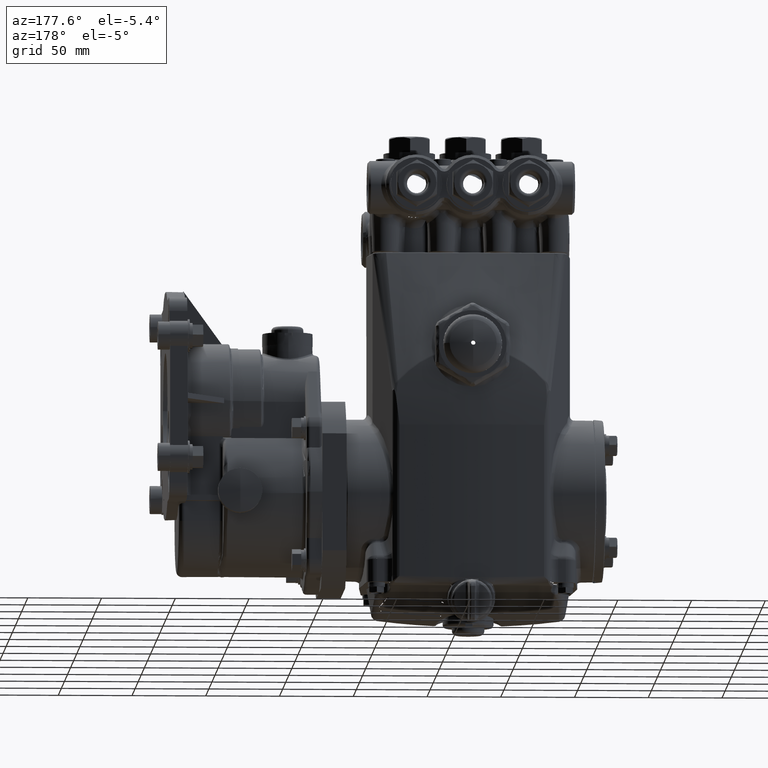
[diagram: clean part render]
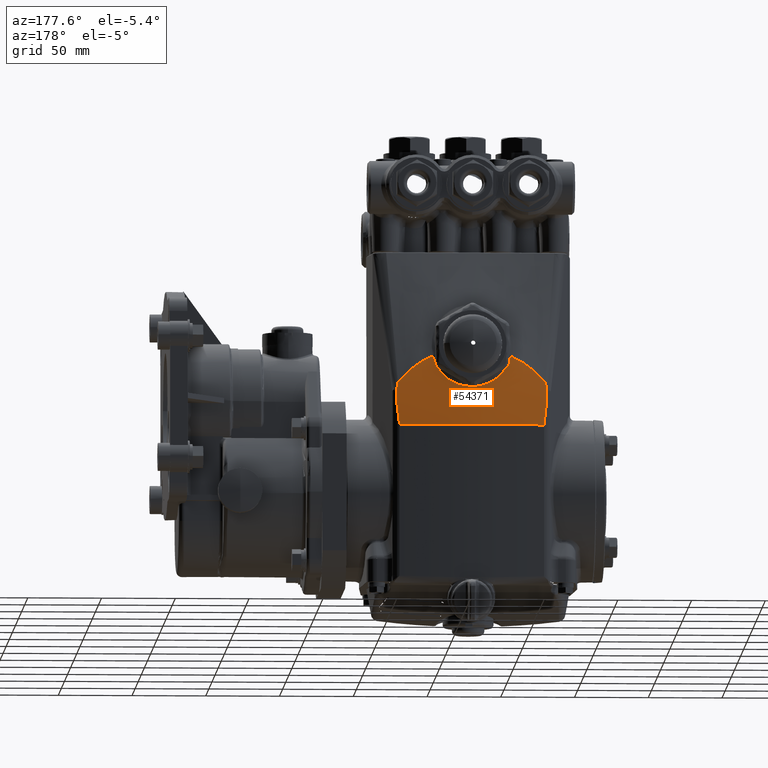
[diagram: same view with one face highlighted and labeled with its STEP entity id]
A machine part, auxiliary view. The second image highlights one B-rep face of the part: STEP entity #54371.
In plain terms, the highlighted spherical surface has radius 400 mm.
Its self-contained STEP definition (entity closure, byte-faithful):
#1070 = CARTESIAN_POINT ( 'NONE',  ( 7.411710589417288553, 2.760108725051190426, -0.4744634273393871782 ) ) ;
#1759 = CARTESIAN_POINT ( 'NONE',  ( 7.359266636544274043, 2.744135218266491538, -0.1176191281825129387 ) ) ;
#1860 = CARTESIAN_POINT ( 'NONE',  ( 3.585143597574464103, 2.748840525729377315, 0.02764377415667945703 ) ) ;
#5626 = CARTESIAN_POINT ( 'NONE',  ( 4.721534570659011720, 2.843959012283986620, -0.02465880241784706300 ) ) ;
#5769 = CARTESIAN_POINT ( 'NONE',  ( 5.976630914729137878, 2.854871326418241040, -0.1068568469742178922 ) ) ;
#7725 = VERTEX_POINT ( 'NONE', #59507 ) ;
#8585 = CARTESIAN_POINT ( 'NONE',  ( 7.293187918398695402, 2.746628519215017938, -0.04066685915235219995 ) ) ;
#9113 = EDGE_CURVE ( 'NONE', #68163, #28162, #116199, .T. ) ;
#9606 = ORIENTED_EDGE ( 'NONE', *, *, #21107, .T. ) ;
#9628 = CARTESIAN_POINT ( 'NONE',  ( 5.752283558138952202, 2.869188007011713282, -0.2145593849138518472 ) ) ;
#10571 = B_SPLINE_CURVE_WITH_KNOTS ( 'NONE', 3,
 ( #140017, #129389, #118066, #63530, #86231, #74885, #96152, #139338, #106747, #20960, #11020, #95458, #20267, #54279, #96822, #52878, #64212, #9628, #43629, #84134, #65631, #31593 ),
 .UNSPECIFIED., .F., .F.,
 ( 4, 2, 2, 2, 2, 2, 2, 2, 2, 2, 4 ),
 ( 0.000000000000000000, 0.003790329581844025485, 0.007580659163688050969, 0.009475823954610104044, 0.01137098874553215712, 0.01516131832737626327, 0.01895164790922037115, 0.02084681270014238086, 0.02274197749106439403, 0.02653230707290842039, 0.03032263665475244674 ),
 .UNSPECIFIED. ) ;
#10792 = CARTESIAN_POINT ( 'NONE',  ( 6.451186556671676620, 2.765995429165698738, 0.5609271297815074941 ) ) ;
#11020 = CARTESIAN_POINT ( 'NONE',  ( 5.355340753378112773, 2.876588609866419510, -0.2700890872114328212 ) ) ;
#11033 = CARTESIAN_POINT ( 'NONE',  ( 7.408840721262099471, 2.754016104290524236, -0.3589173966589278009 ) ) ;
#11382 = CARTESIAN_POINT ( 'NONE',  ( 7.227541293521897003, 2.748840525729375095, 0.02764377415669114907 ) ) ;
#12854 = VERTEX_POINT ( 'NONE', #111402 ) ;
#13196 = CARTESIAN_POINT ( 'NONE',  ( 4.190459829063852837, 2.763313851934610987, 0.4774421532694348991 ) ) ;
#15293 = CARTESIAN_POINT ( 'NONE',  ( 3.795237427238295602, 2.754935085353053648, 0.2167603371355423802 ) ) ;
#15365 = CARTESIAN_POINT ( 'NONE',  ( 3.404766025644409222, 2.769003295580157786, -0.6594743326888403701 ) ) ;
#15526 = ORIENTED_EDGE ( 'NONE', *, *, #130062, .F. ) ;
#16180 = EDGE_CURVE ( 'NONE', #42837, #85389, #88405, .T. ) ;
#19972 = CARTESIAN_POINT ( 'NONE',  ( 3.409013248301451693, 2.750429659533683235, -0.2897242891631867656 ) ) ;
#20267 = CARTESIAN_POINT ( 'NONE',  ( 5.506640452032141475, 2.876128733683195104, -0.2666418199962487523 ) ) ;
#20960 = CARTESIAN_POINT ( 'NONE',  ( 5.305292536416565063, 2.876118011636385585, -0.2665614231835552461 ) ) ;
#21107 = EDGE_CURVE ( 'NONE', #27507, #68163, #69700, .T. ) ;
#21434 = CARTESIAN_POINT ( 'NONE',  ( 6.117878968058032108, 2.840912178149003875, -0.001718556176561512796 ) ) ;
#22133 = CARTESIAN_POINT ( 'NONE',  ( 6.035159107400927425, 2.849722317005130456, -0.06806325455442235883 ) ) ;
#22369 = CARTESIAN_POINT ( 'NONE',  ( 7.401187944168125199, 2.749269697790677647, -0.2667691594126622157 ) ) ;
#22506 = CARTESIAN_POINT ( 'NONE',  ( 7.355400256998185782, 2.744280672945216715, -0.1131107497964023850 ) ) ;
#23739 = CARTESIAN_POINT ( 'NONE',  ( 7.407507478083310559, 2.752803683737065743, -0.3358310037822204164 ) ) ;
#23825 = CARTESIAN_POINT ( 'NONE',  ( 5.976630914729137878, 2.854871326418241040, -0.1068568469742178922 ) ) ;
#23897 = CARTESIAN_POINT ( 'NONE',  ( 3.478449942988243393, 2.790672730887743036, -1.281856896720500183 ) ) ;
#24214 = CARTESIAN_POINT ( 'NONE',  ( 6.354734944268568775, 2.800802878353770620, 0.2998519358522238609 ) ) ;
#25307 = FACE_OUTER_BOUND ( 'NONE', #139385, .T. ) ;
#25746 = CARTESIAN_POINT ( 'NONE',  ( 7.407918865451945223, 2.769003295580157786, -0.6594743326888403701 ) ) ;
#27507 = VERTEX_POINT ( 'NONE', #138537 ) ;
#28162 = VERTEX_POINT ( 'NONE', #40219 ) ;
#28674 = CARTESIAN_POINT ( 'NONE',  ( 4.836053976367216123, 2.854871326418241040, -0.1068568469742178922 ) ) ;
#28997 = CARTESIAN_POINT ( 'NONE',  ( 4.377284385243741305, 2.775167860691243327, 0.4922045207538940925 ) ) ;
#29235 = CARTESIAN_POINT ( 'NONE',  ( 3.403844169834249644, 2.754016104290522016, -0.3589173966589278009 ) ) ;
#29401 = VERTEX_POINT ( 'NONE', #48300 ) ;
#31593 = CARTESIAN_POINT ( 'NONE',  ( 5.976630914729137878, 2.854871326418241040, -0.1068568469742178922 ) ) ;
#32090 = CARTESIAN_POINT ( 'NONE',  ( 6.239926505359144393, 2.824317205061654512, 0.1231590657167134090 ) ) ;
#32773 = CARTESIAN_POINT ( 'NONE',  ( 6.413161078979516816, 2.783974961574250173, 0.4261585573468510968 ) ) ;
#33387 = CARTESIAN_POINT ( 'NONE',  ( 3.450244936405966634, 2.744100141327170839, -0.1224879249711158802 ) ) ;
#33441 = ORIENTED_EDGE ( 'NONE', *, *, #9113, .T. ) ;
#35149 = CARTESIAN_POINT ( 'NONE',  ( 4.275141501177729175, 2.764712794711290389, 0.5209833418155830342 ) ) ;
#35232 = CARTESIAN_POINT ( 'NONE',  ( 7.334234948108111496, 2.790672730887743036, -1.281856896720500183 ) ) ;
#36804 = CARTESIAN_POINT ( 'NONE',  ( 4.511772906341056988, 2.812885709937618106, 0.2090859492975347678 ) ) ;
#37755 = B_SPLINE_CURVE_WITH_KNOTS ( 'NONE', 3,
 ( #107087, #8585, #11382, #83779, #108479, #53906, #84467, #64555, #73116, #86579, #85879, #107772 ),
 .UNSPECIFIED., .F., .F.,
 ( 4, 2, 2, 2, 2, 4 ),
 ( 0.000000000000000000, 0.007175936972554435370, 0.01435187394510887074, 0.02152781091766330784, 0.02511577940394055936, 0.02870374789021781087 ),
 .UNSPECIFIED. ) ;
#38949 = CARTESIAN_POINT ( 'NONE',  ( 4.361498334424678269, 2.765995429165698738, 0.5609271297815074941 ) ) ;
#39497 = AXIS2_PLACEMENT_3D ( 'NONE', #89829, #110338, #123802 ) ;
#40219 = CARTESIAN_POINT ( 'NONE',  ( 3.457284634098168663, 2.744280672945216715, -0.1131107497964023850 ) ) ;
#41243 = CARTESIAN_POINT ( 'NONE',  ( 3.404766025644409222, 2.769003295580157786, -0.6594743326888403701 ) ) ;
#41617 = ORIENTED_EDGE ( 'NONE', *, *, #70125, .T. ) ;
#42837 = VERTEX_POINT ( 'NONE', #25746 ) ;
#43629 = CARTESIAN_POINT ( 'NONE',  ( 5.799082259387792426, 2.866919377165096261, -0.1975202459510603248 ) ) ;
#44314 = CARTESIAN_POINT ( 'NONE',  ( 7.377330556044019438, 2.744529481729054421, -0.1538586733035944842 ) ) ;
#45001 = CARTESIAN_POINT ( 'NONE',  ( 7.355400256998185782, 2.744280672945216715, -0.1131107497964023850 ) ) ;
#45102 = CARTESIAN_POINT ( 'NONE',  ( 3.723008224733409310, 2.752992701842571943, 0.1563641485528850517 ) ) ;
#47459 = CARTESIAN_POINT ( 'NONE',  ( 4.399523812116838073, 2.783974961574250173, 0.4261585573468508747 ) ) ;
#48160 = CARTESIAN_POINT ( 'NONE',  ( 4.806375976819608375, 2.852396947859225929, -0.08821231600555870522 ) ) ;
#48300 = CARTESIAN_POINT ( 'NONE',  ( 7.334234948108111496, 2.790672730887743036, -1.281856896720500183 ) ) ;
#49018 = DIRECTION ( 'NONE',  ( 1.000000000000000000, 0.000000000000000000, 0.000000000000000000 ) ) ;
#51228 = CIRCLE ( 'NONE', #137244, 15.74803149606299257 ) ;
#51889 = CARTESIAN_POINT ( 'NONE',  ( 3.401117893143377646, 2.757663648399890644, -0.4281983147490282526 ) ) ;
#52543 = B_SPLINE_CURVE_WITH_KNOTS ( 'NONE', 3,
 ( #77768, #112416, #1860, #45102, #15293, #88413, #67081, #110288, #13196, #35149, #121615, #93986 ),
 .UNSPECIFIED., .F., .F.,
 ( 4, 2, 2, 2, 2, 4 ),
 ( 0.000000000000000000, 0.007175936972554452717, 0.01435187394510890543, 0.02152781091766335642, 0.02511577940394058364, 0.02870374789021781087 ),
 .UNSPECIFIED. ) ;
#52878 = CARTESIAN_POINT ( 'NONE',  ( 5.655502649839983853, 2.872759866097307491, -0.2413713288349582098 ) ) ;
#53906 = CARTESIAN_POINT ( 'NONE',  ( 6.866403238511703755, 2.758552492153421909, 0.3296342935726797041 ) ) ;
#53978 = CARTESIAN_POINT ( 'NONE',  ( 3.403933985455053435, 2.767051608514772720, -0.6132063874883624255 ) ) ;
#54048 = CARTESIAN_POINT ( 'NONE',  ( 6.091150320437342280, 2.843959012283986620, -0.02465880241784720178 ) ) ;
#54148 = CARTESIAN_POINT ( 'NONE',  ( 3.404766025644409222, 2.769003295580157786, -0.6594743326888403701 ) ) ;
#54279 = CARTESIAN_POINT ( 'NONE',  ( 5.581454290894622083, 2.874732703681152746, -0.2561719247875577365 ) ) ;
#54295 = CARTESIAN_POINT ( 'NONE',  ( 7.394402413040499944, 2.747100472016334560, -0.2211717020273406276 ) ) ;
#54371 = ADVANCED_FACE ( 'NONE', ( #25307 ), #56513, .T. ) ;
#55655 = CARTESIAN_POINT ( 'NONE',  ( 7.368107277143172595, 2.744135195714592967, -0.1325788116785494575 ) ) ;
#56352 = CARTESIAN_POINT ( 'NONE',  ( 7.370581815466014319, 2.744208490288597257, -0.1378110241449267692 ) ) ;
#56513 = SPHERICAL_SURFACE ( 'NONE', #39497, 15.74803149606299257 ) ;
#58342 = B_SPLINE_CURVE_WITH_KNOTS ( 'NONE', 3,
 ( #10792, #121293, #32773, #119226, #24214, #139792, #129176, #32090, #75365, #21434, #54048, #22133, #65409, #5769 ),
 .UNSPECIFIED., .F., .F.,
 ( 4, 2, 2, 2, 2, 2, 4 ),
 ( 2.255140518769849531E-17, 0.005337828596165978753, 0.008006742894248975936, 0.01067565719233197138, 0.01601348578849796922, 0.01868240008658093518, 0.02135131438466390461 ),
 .UNSPECIFIED. ) ;
#59107 = ORIENTED_EDGE ( 'NONE', *, *, #78424, .T. ) ;
#59507 = CARTESIAN_POINT ( 'NONE',  ( 4.361498334424678269, 2.765995429165698738, 0.5609271297815074941 ) ) ;
#60190 = CARTESIAN_POINT ( 'NONE',  ( 4.694805923038323670, 2.840912178149003875, -0.001718556176561234590 ) ) ;
#63530 = CARTESIAN_POINT ( 'NONE',  ( 5.013501601691578102, 2.866913831969906123, -0.1974785686847502220 ) ) ;
#64212 = CARTESIAN_POINT ( 'NONE',  ( 5.680006830788683736, 2.871946628179549599, -0.2352685034332131220 ) ) ;
#64555 = CARTESIAN_POINT ( 'NONE',  ( 6.664070306234108898, 2.762571522919594180, 0.4544603547910327501 ) ) ;
#65409 = CARTESIAN_POINT ( 'NONE',  ( 6.006308914276746513, 2.852396947859227705, -0.08821231600555874686 ) ) ;
#65631 = CARTESIAN_POINT ( 'NONE',  ( 5.934006111573649100, 2.858425133973256926, -0.1336349140467886221 ) ) ;
#67081 = CARTESIAN_POINT ( 'NONE',  ( 4.025135362693263552, 2.760236261075037945, 0.3820652136290408341 ) ) ;
#67884 = CARTESIAN_POINT ( 'NONE',  ( 7.384561477712114907, 2.780266509493670934, -0.8668124400433430132 ) ) ;
#68163 = VERTEX_POINT ( 'NONE', #54148 ) ;
#69700 = B_SPLINE_CURVE_WITH_KNOTS ( 'NONE', 3,
 ( #23897, #112489, #78514, #15365 ),
 .UNSPECIFIED., .F., .F.,
 ( 4, 4 ),
 ( -0.0001264911079878683277, 0.01580325867421138869 ),
 .UNSPECIFIED. ) ;
#70125 = EDGE_CURVE ( 'NONE', #29401, #27507, #51228, .T. ) ;
#70148 = CARTESIAN_POINT ( 'NONE',  ( 4.572758385737208719, 2.824317205061654512, 0.1231590657167133951 ) ) ;
#70221 = EDGE_CURVE ( 'NONE', #85389, #12854, #37755, .T. ) ;
#70422 = EDGE_CURVE ( 'NONE', #7725, #134422, #98782, .T. ) ;
#71460 = EDGE_CURVE ( 'NONE', #134422, #76768, #10571, .T. ) ;
#71527 = CARTESIAN_POINT ( 'NONE',  ( 4.618535747108202472, 2.831320628359351055, 0.07047498841637089839 ) ) ;
#73116 = CARTESIAN_POINT ( 'NONE',  ( 6.622225062032496723, 2.763313851934614540, 0.4774421532694265169 ) ) ;
#73812 = B_SPLINE_CURVE_WITH_KNOTS ( 'NONE', 3,
 ( #35232, #77167, #67884, #130956 ),
 .UNSPECIFIED., .F., .F.,
 ( 4, 4 ),
 ( -0.0001264911079878683277, 0.01580325867421138869 ),
 .UNSPECIFIED. ) ;
#74885 = CARTESIAN_POINT ( 'NONE',  ( 5.132374404919143096, 2.871935896744032490, -0.2351879576430124241 ) ) ;
#75256 = EDGE_CURVE ( 'NONE', #12854, #76768, #58342, .T. ) ;
#75365 = CARTESIAN_POINT ( 'NONE',  ( 6.194149143988154194, 2.831320628359350167, 0.07047498841637062084 ) ) ;
#75804 = ORIENTED_EDGE ( 'NONE', *, *, #71460, .T. ) ;
#76693 = CARTESIAN_POINT ( 'NONE',  ( 3.453418254552079070, 2.744135218266491982, -0.1176191281825128832 ) ) ;
#76768 = VERTEX_POINT ( 'NONE', #23825 ) ;
#77167 = CARTESIAN_POINT ( 'NONE',  ( 7.359645860204577339, 2.787538320918073076, -1.074378869970235684 ) ) ;
#77768 = CARTESIAN_POINT ( 'NONE',  ( 3.457284634098168663, 2.744280672945216715, -0.1131107497964023850 ) ) ;
#78061 = CARTESIAN_POINT ( 'NONE',  ( 3.442103075630334352, 2.744208490288595037, -0.1378110241449242990 ) ) ;
#78424 = EDGE_CURVE ( 'NONE', #28162, #7725, #52543, .T. ) ;
#78514 = CARTESIAN_POINT ( 'NONE',  ( 3.428123413384240870, 2.780266509493671379, -0.8668124400433429022 ) ) ;
#80799 = CARTESIAN_POINT ( 'NONE',  ( 4.836053976367216123, 2.854871326418241040, -0.1068568469742178922 ) ) ;
#82223 = CARTESIAN_POINT ( 'NONE',  ( 4.442173538417598877, 2.796661846459180367, 0.3309433287735936147 ) ) ;
#83779 = CARTESIAN_POINT ( 'NONE',  ( 7.089676666362928259, 2.752992701842576384, 0.1563641485528686759 ) ) ;
#84134 = CARTESIAN_POINT ( 'NONE',  ( 5.889943266765567564, 2.861537866491724813, -0.1570573809020416323 ) ) ;
#84467 = CARTESIAN_POINT ( 'NONE',  ( 6.787549528403091337, 2.760236261075037056, 0.3820652136290415002 ) ) ;
#84530 = CARTESIAN_POINT ( 'NONE',  ( 3.405177413013046994, 2.752803683737064411, -0.3358310037822204719 ) ) ;
#85389 = VERTEX_POINT ( 'NONE', #22506 ) ;
#85879 = CARTESIAN_POINT ( 'NONE',  ( 6.494642841968846447, 2.765373780665124848, 0.5415519453914344750 ) ) ;
#86231 = CARTESIAN_POINT ( 'NONE',  ( 5.060235505207494988, 2.869179947254492546, -0.2144988482716677358 ) ) ;
#86579 = CARTESIAN_POINT ( 'NONE',  ( 6.537543389918623049, 2.764712794711293942, 0.5209833418155747076 ) ) ;
#87330 = CARTESIAN_POINT ( 'NONE',  ( 3.431747691321597848, 2.744877421991300803, -0.1650288623368506846 ) ) ;
#88011 = CARTESIAN_POINT ( 'NONE',  ( 3.422502168512468135, 2.746079943245791188, -0.1985154414731198635 ) ) ;
#88405 = B_SPLINE_CURVE_WITH_KNOTS ( 'NONE', 3,
 ( #120829, #119459, #108136, #1070, #109514, #11033, #23739, #132152, #22369, #54295, #98225, #97546, #44314, #56352, #55655, #98899, #1759, #45001 ),
 .UNSPECIFIED., .F., .F.,
 ( 4, 2, 2, 2, 2, 2, 2, 2, 4 ),
 ( 0.000000000000000000, 0.003529259899864232043, 0.007058519799728464085, 0.008823149749660584226, 0.01058777969959270697, 0.01235240964952482798, 0.01323472462449089108, 0.01367588211197390442, 0.01411703959945691950 ),
 .UNSPECIFIED. ) ;
#88413 = CARTESIAN_POINT ( 'NONE',  ( 3.946281652584653798, 2.758552492153424129, 0.3296342935726720436 ) ) ;
#89829 = CARTESIAN_POINT ( 'NONE',  ( 5.406342445548177444, -12.83890584627054210, -1.281856896720500183 ) ) ;
#90734 = CARTESIAN_POINT ( 'NONE',  ( 4.492693494114825548, 2.808905571637419829, 0.2389927266451515320 ) ) ;
#93986 = CARTESIAN_POINT ( 'NONE',  ( 4.361498334424678269, 2.765995429165698738, 0.5609271297815074941 ) ) ;
#95176 = CARTESIAN_POINT ( 'NONE',  ( 3.411496946928224805, 2.749269697790674538, -0.2667691594126617716 ) ) ;
#95458 = CARTESIAN_POINT ( 'NONE',  ( 5.456242134412629952, 2.876595448222892593, -0.2701403565468522561 ) ) ;
#96152 = CARTESIAN_POINT ( 'NONE',  ( 5.156836015172958199, 2.872748930313927751, -0.2412892674670170934 ) ) ;
#96822 = CARTESIAN_POINT ( 'NONE',  ( 5.606239308185153369, 2.874152069571448642, -0.2518167716381778942 ) ) ;
#97252 = CARTESIAN_POINT ( 'NONE',  ( 3.400974301679069445, 2.760108725051190426, -0.4744634273393870116 ) ) ;
#97546 = CARTESIAN_POINT ( 'NONE',  ( 7.380937199774756152, 2.744877421991301247, -0.1650288623368503516 ) ) ;
#98225 = CARTESIAN_POINT ( 'NONE',  ( 7.390182722583886310, 2.746079943245791188, -0.1985154414731195860 ) ) ;
#98782 = B_SPLINE_CURVE_WITH_KNOTS ( 'NONE', 3,
 ( #38949, #28997, #47459, #82223, #133906, #90734, #36804, #70148, #71527, #60190, #5626, #114747, #48160, #80799 ),
 .UNSPECIFIED., .F., .F.,
 ( 4, 2, 2, 2, 2, 2, 4 ),
 ( 3.103167691559091397E-17, 0.005337828596165998703, 0.008006742894248974202, 0.01067565719233194883, 0.01601348578849792759, 0.01868240008658091436, 0.02135131438466390114 ),
 .UNSPECIFIED. ) ;
#98899 = CARTESIAN_POINT ( 'NONE',  ( 7.362439954690383814, 2.744100141327173503, -0.1224879249711165047 ) ) ;
#103604 = CARTESIAN_POINT ( 'NONE',  ( 5.406342445548177444, -12.83890584627054210, -1.281856896720500183 ) ) ;
#105764 = CARTESIAN_POINT ( 'NONE',  ( 3.403008984057497521, 2.764882324099533051, -0.5669506235331037702 ) ) ;
#106472 = CARTESIAN_POINT ( 'NONE',  ( 3.418282478055851392, 2.747100472016333672, -0.2211717020273404610 ) ) ;
#106747 = CARTESIAN_POINT ( 'NONE',  ( 5.230814238905853841, 2.874723253573725046, -0.2561010430835976570 ) ) ;
#107087 = CARTESIAN_POINT ( 'NONE',  ( 7.355400256998185782, 2.744280672945216715, -0.1131107497964023850 ) ) ;
#107750 = ORIENTED_EDGE ( 'NONE', *, *, #75256, .F. ) ;
#107772 = CARTESIAN_POINT ( 'NONE',  ( 6.451186556671676620, 2.765995429165698738, 0.5609271297815074941 ) ) ;
#108136 = CARTESIAN_POINT ( 'NONE',  ( 7.409675907038854703, 2.764882324099533051, -0.5669506235331037702 ) ) ;
#108479 = CARTESIAN_POINT ( 'NONE',  ( 7.017447463858062839, 2.754935085353053204, 0.2167603371355475983 ) ) ;
#109514 = CARTESIAN_POINT ( 'NONE',  ( 7.411566997952974134, 2.757663648399893752, -0.4281983147490280861 ) ) ;
#110288 = CARTESIAN_POINT ( 'NONE',  ( 4.148614584862247767, 2.762571522919594180, 0.4544603547910309183 ) ) ;
#110338 = DIRECTION ( 'NONE',  ( -0.9848077530122080203, 0.1736481776669307475, 0.000000000000000000 ) ) ;
#111402 = CARTESIAN_POINT ( 'NONE',  ( 6.451186556671676620, 2.765995429165698738, 0.5609271297815074941 ) ) ;
#112416 = CARTESIAN_POINT ( 'NONE',  ( 3.519496972697655934, 2.746628519215017050, -0.04066685915234766191 ) ) ;
#112489 = CARTESIAN_POINT ( 'NONE',  ( 3.453039030891799310, 2.787538320918075740, -1.074378869970233019 ) ) ;
#113122 = ORIENTED_EDGE ( 'NONE', *, *, #70422, .T. ) ;
#114747 = CARTESIAN_POINT ( 'NONE',  ( 4.777525783695428352, 2.849722317005129124, -0.06806325455442223393 ) ) ;
#116199 = B_SPLINE_CURVE_WITH_KNOTS ( 'NONE', 3,
 ( #41243, #53978, #105764, #97252, #51889, #29235, #84530, #19972, #95176, #106472, #88011, #87330, #130489, #78061, #121220, #33387, #76693, #119156 ),
 .UNSPECIFIED., .F., .F.,
 ( 4, 2, 2, 2, 2, 2, 2, 2, 4 ),
 ( 0.000000000000000000, 0.003529259899864232043, 0.007058519799728464085, 0.008823149749660584226, 0.01058777969959270003, 0.01235240964952481584, 0.01323472462449086853, 0.01367588211197389401, 0.01411703959945691950 ),
 .UNSPECIFIED. ) ;
#118066 = CARTESIAN_POINT ( 'NONE',  ( 4.922724274628652807, 2.861536399727179436, -0.1570463361517696055 ) ) ;
#119156 = CARTESIAN_POINT ( 'NONE',  ( 3.457284634098168663, 2.744280672945216715, -0.1131107497964023850 ) ) ;
#119226 = CARTESIAN_POINT ( 'NONE',  ( 6.370511352678756012, 2.796661846459181255, 0.3309433287735937812 ) ) ;
#119459 = CARTESIAN_POINT ( 'NONE',  ( 7.408750905641300122, 2.767051608514772720, -0.6132063874883624255 ) ) ;
#120829 = CARTESIAN_POINT ( 'NONE',  ( 7.407918865451945223, 2.769003295580157786, -0.6594743326888403701 ) ) ;
#121022 = ORIENTED_EDGE ( 'NONE', *, *, #16180, .F. ) ;
#121220 = CARTESIAN_POINT ( 'NONE',  ( 3.444577613953180961, 2.744135195714592967, -0.1325788116785490689 ) ) ;
#121293 = CARTESIAN_POINT ( 'NONE',  ( 6.435400505852613584, 2.775167860691244215, 0.4922045207538939815 ) ) ;
#121615 = CARTESIAN_POINT ( 'NONE',  ( 4.318042049127512882, 2.765373780665123959, 0.5415519453914329207 ) ) ;
#123802 = DIRECTION ( 'NONE',  ( 0.1736481776669307475, 0.9848077530122080203, 0.000000000000000000 ) ) ;
#124864 = DIRECTION ( 'NONE',  ( -0.000000000000000000, -0.000000000000000000, 1.000000000000000000 ) ) ;
#125605 = ORIENTED_EDGE ( 'NONE', *, *, #70221, .F. ) ;
#129176 = CARTESIAN_POINT ( 'NONE',  ( 6.300911984755297013, 2.812885709937618106, 0.2090859492975349343 ) ) ;
#129389 = CARTESIAN_POINT ( 'NONE',  ( 4.878680241929382433, 2.858425255900199691, -0.1336358327706565208 ) ) ;
#130062 = EDGE_CURVE ( 'NONE', #29401, #42837, #73812, .T. ) ;
#130489 = CARTESIAN_POINT ( 'NONE',  ( 3.435354335052333230, 2.744529481729051756, -0.1538586733035924581 ) ) ;
#130956 = CARTESIAN_POINT ( 'NONE',  ( 7.407918865451945223, 2.769003295580157786, -0.6594743326888403701 ) ) ;
#132152 = CARTESIAN_POINT ( 'NONE',  ( 7.403671642794904528, 2.750429659533685012, -0.2897242891631865991 ) ) ;
#133906 = CARTESIAN_POINT ( 'NONE',  ( 4.457949946827786114, 2.800802878353770176, 0.2998519358522236389 ) ) ;
#134422 = VERTEX_POINT ( 'NONE', #28674 ) ;
#137244 = AXIS2_PLACEMENT_3D ( 'NONE', #103604, #124864, #49018 ) ;
#138537 = CARTESIAN_POINT ( 'NONE',  ( 3.478449942988243393, 2.790672730887743036, -1.281856896720500183 ) ) ;
#139338 = CARTESIAN_POINT ( 'NONE',  ( 5.206087533587555605, 2.874143085879939274, -0.2517493807307131792 ) ) ;
#139385 = EDGE_LOOP ( 'NONE', ( #41617, #9606, #33441, #59107, #113122, #75804, #107750, #125605, #121022, #15526 ) ) ;
#139792 = CARTESIAN_POINT ( 'NONE',  ( 6.319991396981530229, 2.808905571637421161, 0.2389927266451516430 ) ) ;
#140017 = CARTESIAN_POINT ( 'NONE',  ( 4.836053976367216123, 2.854871326418241040, -0.1068568469742178922 ) ) ;